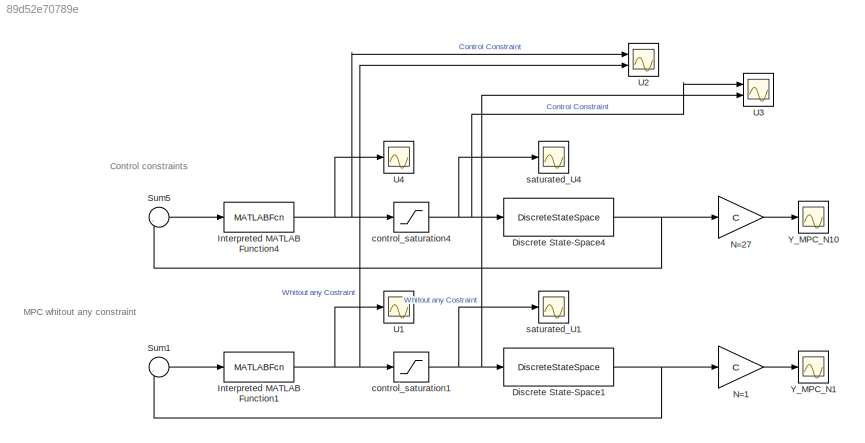
MODEL slx_89d52e70789e
KIND model
CONFIG AbsTol = auto
CONFIG EnableMultiTasking = off
CONFIG FixedStep = auto
CONFIG MaxStep = auto
CONFIG MinStep = auto
CONFIG RelTol = 1e-3
CONFIG SampleTimeConstraint = Unconstrained
CONFIG SolverName = VariableStepAuto
CONFIG StartTime = 0.0
CONFIG StopTime = 10.0
BLOCK [DiscreteStateSpace] Discrete State-Space1
  A = A
  B = B
  C = C_states
  D = D_states
  InitialCondition = x0
  SampleTime = Ts
BLOCK [DiscreteStateSpace] Discrete State-Space4
  A = A
  B = B
  C = C_states
  D = D_states
  InitialCondition = x0
  SampleTime = Ts
BLOCK [MATLABFcn] Interpreted MATLAB Function1
  MATLABFcn = mympc(A,B,Q,R,S,N3,-inf,+inf,u,Ubar,Xbar);
  OutputDimensions = 1
  Ports = [1, 1]
BLOCK [MATLABFcn] Interpreted MATLAB Function4
  MATLABFcn = mympc(A,B,Q,R,S,N3,umin,umax,u,Ubar,Xbar);
  OutputDimensions = 1
  Ports = [1, 1]
BLOCK [Gain] N=1
  Gain = C
  Multiplication = Matrix(K*u) (u vector)
BLOCK [Gain] N=27
  Gain = C
  Multiplication = Matrix(K*u) (u vector)
BLOCK [Sum] Sum1
  Inputs = |-+
  Ports = [2, 1]
BLOCK [Sum] Sum5
  Inputs = |-+
  Ports = [2, 1]
BLOCK [Scope] U1
  Floating = off
  NumInputPorts = 1
  Ports = [1]
  ScopeSpecificationString = Simulink.scopes.TimeScopeBlockCfg('CurrentConfiguration', extmgr.ConfigurationSet(extmgr.Configuration('Core','General UI',true),extmgr.Configuration('Core','Source UI',true),extmgr.Configuration('Sources','WiredSimulink',true,'DataLoggingSaveFormat','StructureWithTime','DataLoggingLimitDataPoints',true,'DataLoggingDecimation','1','DataLoggingDecimateData',true,'DataLoggingVariableName','ScopeData...<+1803ch>  <repeated x3 — deduplicated; at blocks: U1, U4, saturated_U1>
BLOCK [Scope] U2
  Floating = off
  NumInputPorts = 2
  Ports = [2]
  ScopeSpecificationString = Simulink.scopes.TimeScopeBlockCfg('CurrentConfiguration', extmgr.ConfigurationSet(extmgr.Configuration('Core','General UI',true),extmgr.Configuration('Core','Source UI',true),extmgr.Configuration('Sources','WiredSimulink',true,'DataLoggingSaveFormat','StructureWithTime','DataLoggingLimitDataPoints',true,'DataLoggingDecimation','1','DataLoggingDecimateData',true,'DataLoggingVariableName','ScopeData...<+1814ch>
BLOCK [Scope] U3
  Floating = off
  NumInputPorts = 2
  Ports = [2]
  ScopeSpecificationString = Simulink.scopes.TimeScopeBlockCfg('CurrentConfiguration', extmgr.ConfigurationSet(extmgr.Configuration('Core','General UI',true),extmgr.Configuration('Core','Source UI',true),extmgr.Configuration('Sources','WiredSimulink',true,'DataLoggingSaveFormat','StructureWithTime','DataLoggingLimitDataPoints',true,'DataLoggingDecimation','1','DataLoggingDecimateData',true,'DataLoggingVariableName','ScopeData...<+1793ch>
BLOCK [Scope] U4
  Floating = off
  NumInputPorts = 1
  Ports = [1]
BLOCK [Scope] Y_MPC_N1
  Floating = off
  NumInputPorts = 1
  Ports = [1]
  ScopeSpecificationString = Simulink.scopes.TimeScopeBlockCfg('CurrentConfiguration', extmgr.ConfigurationSet(extmgr.Configuration('Core','General UI',true),extmgr.Configuration('Core','Source UI',true),extmgr.Configuration('Sources','WiredSimulink',true,'DataLoggingVariableName','ScopeData2','DataLoggingSaveFormat','StructureWithTime','DataLoggingLimitDataPoints',true,'DataLoggingDecimation','1','DataLoggingDecimateData',tr...<+1770ch>
BLOCK [Scope] Y_MPC_N10
  Floating = off
  NumInputPorts = 1
  Ports = [1]
  ScopeSpecificationString = Simulink.scopes.TimeScopeBlockCfg('CurrentConfiguration', extmgr.ConfigurationSet(extmgr.Configuration('Core','General UI',true),extmgr.Configuration('Core','Source UI',true),extmgr.Configuration('Sources','WiredSimulink',true,'DataLoggingVariableName','ScopeData2','DataLoggingSaveFormat','StructureWithTime','DataLoggingLimitDataPoints',true,'DataLoggingDecimation','1','DataLoggingDecimateData',tr...<+1770ch>
BLOCK [Saturate] control_saturation1
  LowerLimit = U_min
  UpperLimit = U_max
BLOCK [Saturate] control_saturation4
  LowerLimit = U_min
  UpperLimit = U_max
BLOCK [Scope] saturated_U1
  Floating = off
  NumInputPorts = 1
  Ports = [1]
BLOCK [Scope] saturated_U4
  Floating = off
  NumInputPorts = 1
  Ports = [1]
  ScopeSpecificationString = Simulink.scopes.TimeScopeBlockCfg('CurrentConfiguration', extmgr.ConfigurationSet(extmgr.Configuration('Core','General UI',true),extmgr.Configuration('Core','Source UI',true),extmgr.Configuration('Sources','WiredSimulink',true,'DataLoggingSaveFormat','StructureWithTime','DataLoggingLimitDataPoints',true,'DataLoggingDecimation','1','DataLoggingDecimateData',true),extmgr.Configuration('Visuals','Tim...<+1764ch>
ANNOTATION (root): Control constraints
ANNOTATION (root): MPC whitout any constraint
NET Discrete State-Space1:1 -> N=1:1, Sum1:2
NET Discrete State-Space4:1 -> N=27:1, Sum5:2
NET Interpreted MATLAB Function1:1 -> U1:1, U2:2, control_saturation1:1
NET Interpreted MATLAB Function4:1 -> U2:1, U4:1, control_saturation4:1
LINE N=1:1 -> Y_MPC_N1:1
LINE N=27:1 -> Y_MPC_N10:1
LINE Sum1:1 -> Interpreted MATLAB Function1:1
LINE Sum5:1 -> Interpreted MATLAB Function4:1
NET control_saturation1:1 -> Discrete State-Space1:1, U3:2, saturated_U1:1
NET control_saturation4:1 -> Discrete State-Space4:1, U3:1, saturated_U4:1
note: NET lines group one-source signal fan-out (src -> all destinations, sorted); 1:1 wires keep LINE
